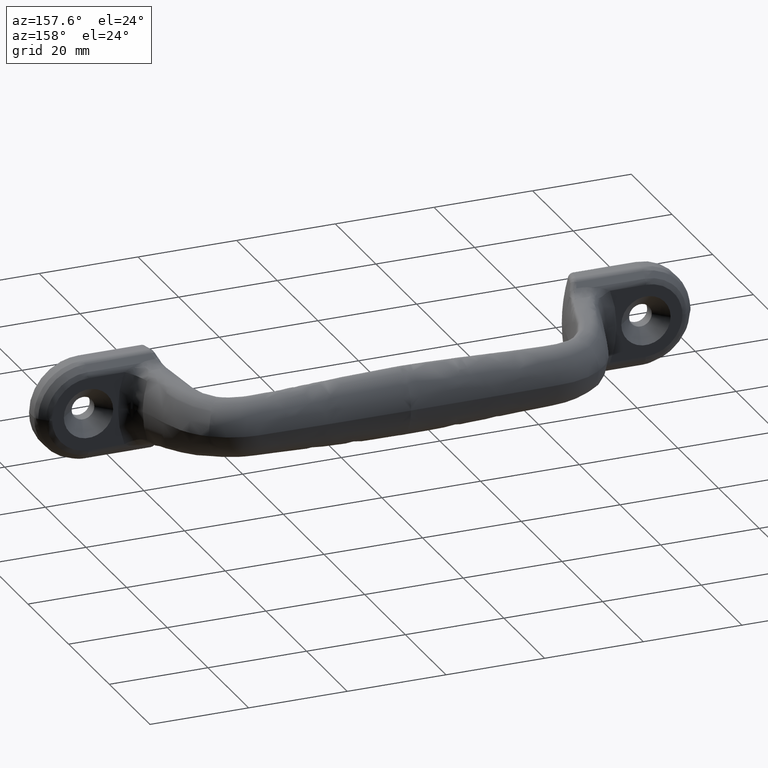
[diagram: clean part render]
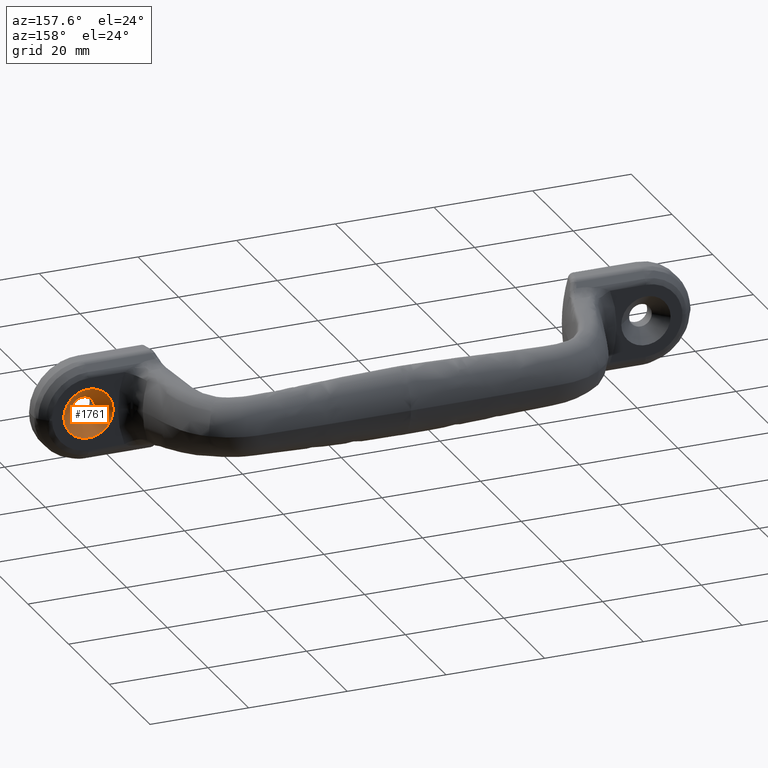
[diagram: same view with one face highlighted and labeled with its STEP entity id]
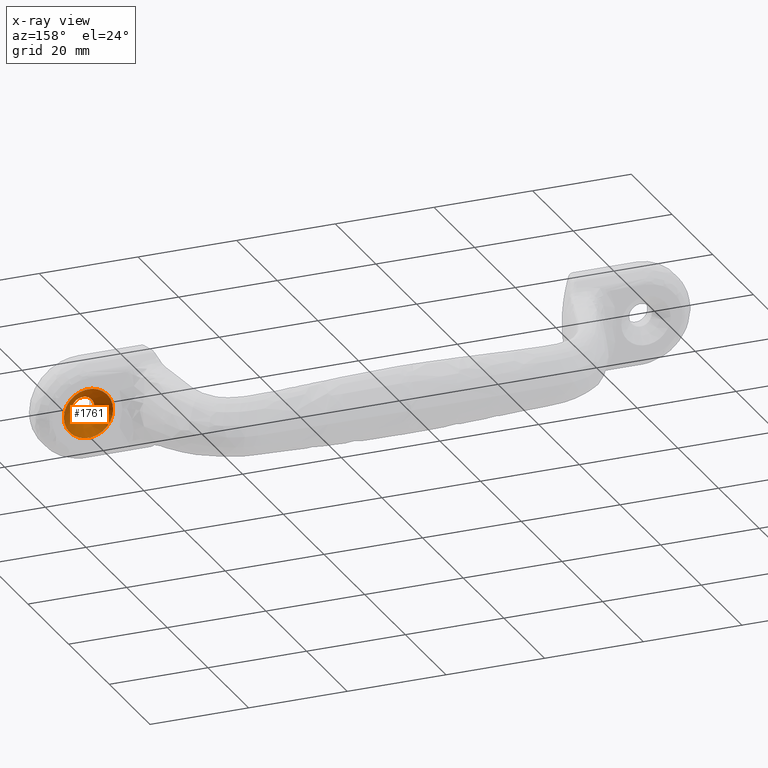
[diagram: x-ray of the same camera — body ghosted, the highlighted face saturated]
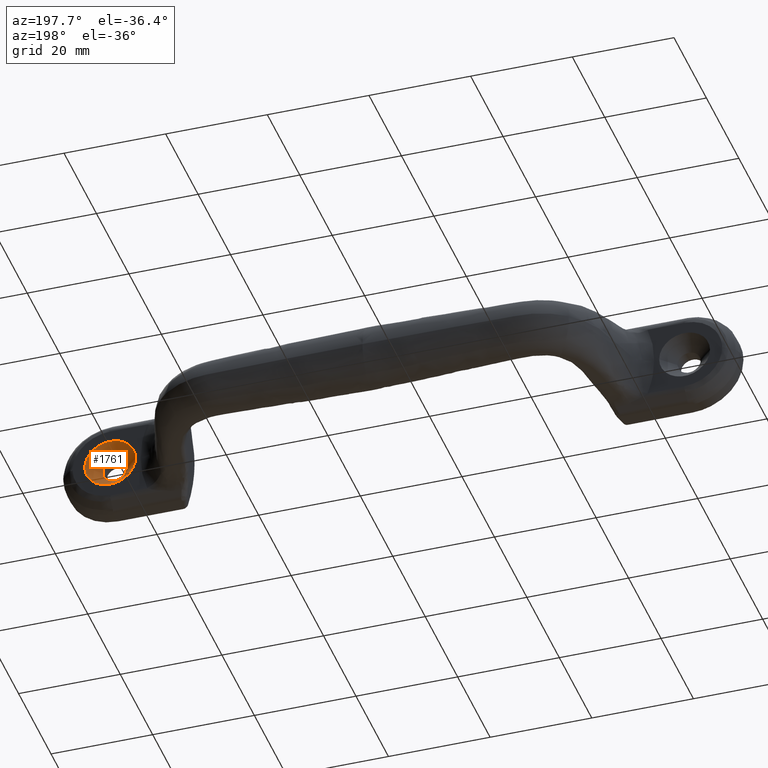
[diagram: same view with one face highlighted and labeled with its STEP entity id]
A machine part, auxiliary view. The second image highlights one B-rep face of the part: STEP entity #1761.
The next image is the same camera in x-ray: the body ghosted, the highlighted face saturated — about 0% of this face is hidden behind the body in this view.
A second angle (auxiliary view) of the same face is appended — the face is thin or edge-on in the first view.
In plain terms, the highlighted conical surface has half-angle 45 deg.
Its self-contained STEP definition (entity closure, byte-faithful):
#453=FACE_BOUND('',#560,.T.);
#461=FACE_OUTER_BOUND('',#559,.T.);
#559=EDGE_LOOP('',(#1171));
#560=EDGE_LOOP('',(#1172));
#662=CIRCLE('',#1863,5.);
#663=CIRCLE('',#1864,2.3);
#670=VERTEX_POINT('',#2047);
#671=VERTEX_POINT('',#2049);
#875=EDGE_CURVE('',#670,#670,#662,.T.);
#876=EDGE_CURVE('',#671,#671,#663,.T.);
#1171=ORIENTED_EDGE('',*,*,#875,.F.);
#1172=ORIENTED_EDGE('',*,*,#876,.F.);
#1758=CONICAL_SURFACE('',#1862,3.65,0.785398163397448);
#1761=ADVANCED_FACE('',(#461,#453),#1758,.F.);
#1862=AXIS2_PLACEMENT_3D('',#2046,#1911,#1912);
#1863=AXIS2_PLACEMENT_3D('',#2048,#1913,#1914);
#1864=AXIS2_PLACEMENT_3D('',#2050,#1915,#1916);
#1911=DIRECTION('center_axis',(0.,1.,0.));
#1912=DIRECTION('ref_axis',(0.999999395314834,0.,0.00109971358366082));
#1913=DIRECTION('center_axis',(0.,-1.,0.));
#1914=DIRECTION('ref_axis',(0.999999395314834,0.,0.00109971358366082));
#1915=DIRECTION('center_axis',(0.,1.,0.));
#1916=DIRECTION('ref_axis',(0.999999395314834,0.,0.00109971358366082));
#2046=CARTESIAN_POINT('Origin',(506.499937911169,-72.85,0.124267634953673));
#2047=CARTESIAN_POINT('',(511.499934887743,-71.5,0.129766202871977));
#2048=CARTESIAN_POINT('Origin',(506.499937911169,-71.5,0.124267634953673));
#2049=CARTESIAN_POINT('',(508.799936520393,-74.2,0.126796976196093));
#2050=CARTESIAN_POINT('Origin',(506.499937911169,-74.2,0.124267634953673));